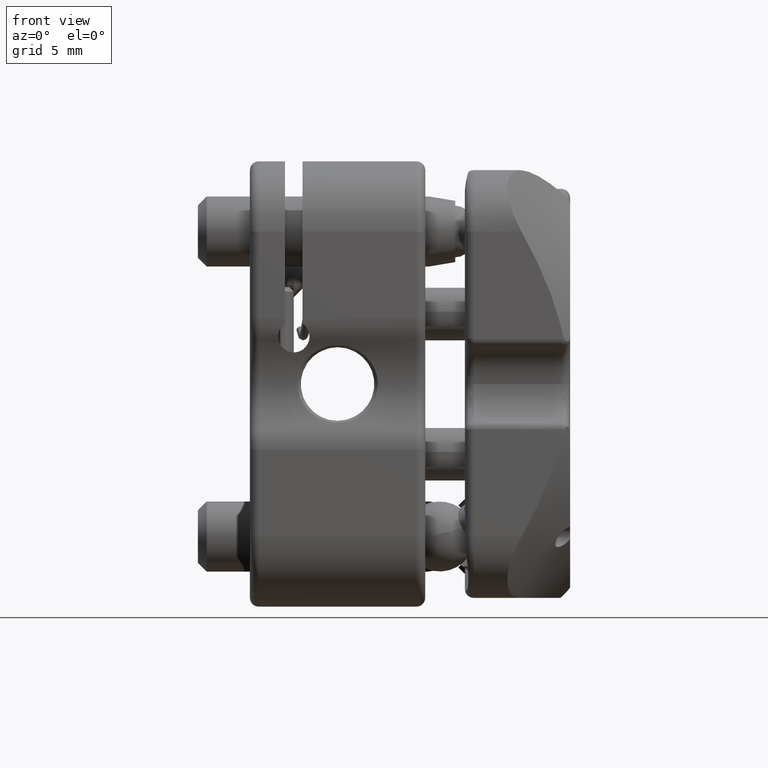
[diagram: clean part render]
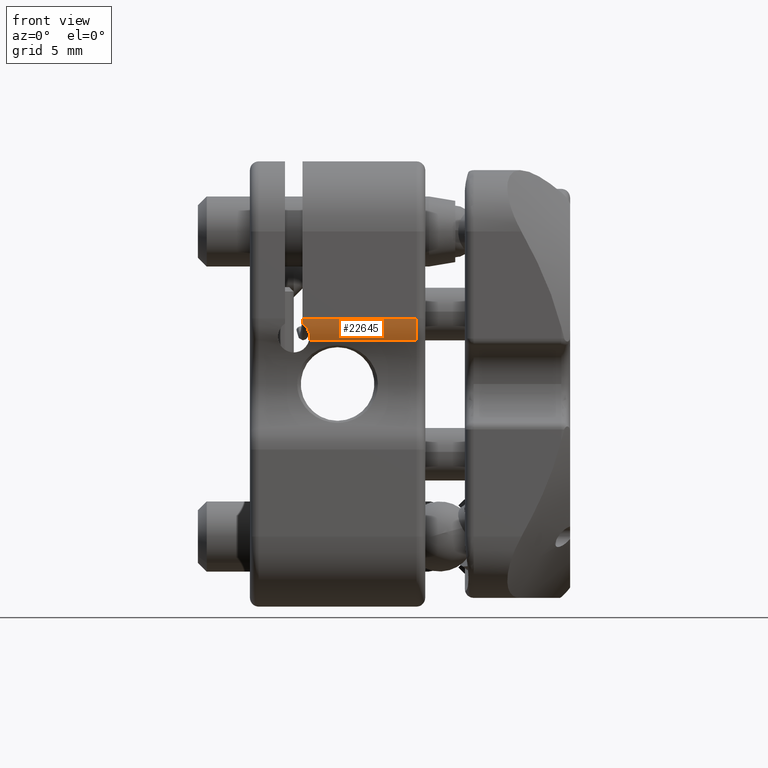
[diagram: same view with one face highlighted and labeled with its STEP entity id]
A machine part, front view. The second image highlights one B-rep face of the part: STEP entity #22645.
In plain terms, the highlighted cylindrical surface (partial cylindrical patch) has radius 2.5 mm, axis along (-1, 0, 0).
Its self-contained STEP definition (entity closure, byte-faithful):
#66 = EDGE_CURVE ( 'NONE', #433, #38697, #7198, .T. ) ;
#433 = VERTEX_POINT ( 'NONE', #35686 ) ;
#711 = CIRCLE ( 'NONE', #13430, 2.500000000000000444 ) ;
#1274 = CARTESIAN_POINT ( 'NONE',  ( -9.000000000000001776, 0.3333333333333278192, 8.099689127586877646 ) ) ;
#2045 = ORIENTED_EDGE ( 'NONE', *, *, #40228, .T. ) ;
#3011 = CARTESIAN_POINT ( 'NONE',  ( -9.000000000000001776, 2.499999999999995115, 9.346908256511522239 ) ) ;
#5234 = ORIENTED_EDGE ( 'NONE', *, *, #39453, .F. ) ;
#7198 = B_SPLINE_CURVE_WITH_KNOTS ( 'NONE', 3,
 ( #40258, #36303, #16751, #20407, #26320, #30244, #36741, #29794 ),
 .UNSPECIFIED., .F., .F.,
 ( 4, 2, 2, 4 ),
 ( 0.0002321896428790677929, 0.0006869918996298951790, 0.0009143930280053078150, 0.001141794156380720451 ),
 .UNSPECIFIED. ) ;
#8136 = VECTOR ( 'NONE', #15782, 1000.000000000000000 ) ;
#10740 = VECTOR ( 'NONE', #20632, 1000.000000000000000 ) ;
#10899 = EDGE_LOOP ( 'NONE', ( #35459, #42578, #2045, #5234, #40456, #27776 ) ) ;
#12628 = FACE_OUTER_BOUND ( 'NONE', #10899, .T. ) ;
#12802 = CARTESIAN_POINT ( 'NONE',  ( -15.09999999999926423, 0.2273473893750234676, 8.305250869737355046 ) ) ;
#12961 = DIRECTION ( 'NONE',  ( -1.000000000000000000, 0.0000000000000000000, 0.0000000000000000000 ) ) ;
#13430 = AXIS2_PLACEMENT_3D ( 'NONE', #26372, #35774, #25938 ) ;
#13519 = AXIS2_PLACEMENT_3D ( 'NONE', #3011, #12961, #36300 ) ;
#15782 = DIRECTION ( 'NONE',  ( 1.000000000000000000, -0.0000000000000000000, -0.0000000000000000000 ) ) ;
#16529 = CARTESIAN_POINT ( 'NONE',  ( -15.50000000000000000, 0.01726765218973587424, 9.053582347092390847 ) ) ;
#16751 = CARTESIAN_POINT ( 'NONE',  ( -15.13239332294805095, 0.1141872216911330867, 8.587489971601621974 ) ) ;
#18057 = LINE ( 'NONE', #30905, #10740 ) ;
#18703 = CARTESIAN_POINT ( 'NONE',  ( -18.50000000000000355, -5.204170427930421283E-15, 9.346908256511522239 ) ) ;
#19357 = CARTESIAN_POINT ( 'NONE',  ( -15.10817031396960175, 0.2950082993259965924, 8.166267302790254590 ) ) ;
#20407 = CARTESIAN_POINT ( 'NONE',  ( -15.23592346189870561, 0.06261118586654371154, 8.786693605786942030 ) ) ;
#20615 = EDGE_CURVE ( 'NONE', #38697, #37553, #711, .T. ) ;
#20632 = DIRECTION ( 'NONE',  ( -1.000000000000000000, 0.0000000000000000000, 0.0000000000000000000 ) ) ;
#21235 = CARTESIAN_POINT ( 'NONE',  ( -15.12378976828391508, 0.3333333333333278192, 8.099689127586875870 ) ) ;
#21543 = CARTESIAN_POINT ( 'NONE',  ( -9.000000000000001776, -5.204170427930421283E-15, 9.346908256511522239 ) ) ;
#21735 = B_SPLINE_CURVE_WITH_KNOTS ( 'NONE', 3,
 ( #32491, #19357, #25467, #12802 ),
 .UNSPECIFIED., .F., .F.,
 ( 4, 4 ),
 ( 0.0000000000000000000, 0.0002321896428790677929 ),
 .UNSPECIFIED. ) ;
#22023 = CYLINDRICAL_SURFACE ( 'NONE', #37906, 2.500000000000000000 ) ;
#22225 = CARTESIAN_POINT ( 'NONE',  ( -8.500000000000000000, 2.499999999999995115, 9.346908256511522239 ) ) ;
#22645 = ADVANCED_FACE ( 'NONE', ( #12628 ), #22023, .T. ) ;
#23061 = DIRECTION ( 'NONE',  ( 0.0000000000000000000, -1.000000000000000000, 0.0000000000000000000 ) ) ;
#25467 = CARTESIAN_POINT ( 'NONE',  ( -15.09999999999996945, 0.2596558558204564160, 8.234761357980444174 ) ) ;
#25938 = DIRECTION ( 'NONE',  ( 0.0000000000000000000, 1.000000000000000000, 0.0000000000000000000 ) ) ;
#26320 = CARTESIAN_POINT ( 'NONE',  ( -15.27827330402256401, 0.04957579004454858163, 8.848214267897025920 ) ) ;
#26372 = CARTESIAN_POINT ( 'NONE',  ( -15.50000000000000000, 2.499999999999995115, 9.346908256511522239 ) ) ;
#27776 = ORIENTED_EDGE ( 'NONE', *, *, #66, .F. ) ;
#27930 = LINE ( 'NONE', #18703, #8136 ) ;
#29794 = CARTESIAN_POINT ( 'NONE',  ( -15.50000000000000000, 0.01726765218973587424, 9.053582347092390847 ) ) ;
#29895 = DIRECTION ( 'NONE',  ( -1.000000000000000000, 0.0000000000000000000, 0.0000000000000000000 ) ) ;
#30244 = CARTESIAN_POINT ( 'NONE',  ( -15.37880590100916223, 0.02932453300836228294, 8.960854840749293615 ) ) ;
#30905 = CARTESIAN_POINT ( 'NONE',  ( -8.500000000000000000, 0.3333333333333278192, 8.099689127586877646 ) ) ;
#32491 = CARTESIAN_POINT ( 'NONE',  ( -15.12378976828391508, 0.3333333333333278192, 8.099689127586875870 ) ) ;
#32523 = EDGE_CURVE ( 'NONE', #42876, #433, #21735, .T. ) ;
#33981 = VERTEX_POINT ( 'NONE', #21543 ) ;
#34079 = CIRCLE ( 'NONE', #13519, 2.500000000000000000 ) ;
#35459 = ORIENTED_EDGE ( 'NONE', *, *, #32523, .F. ) ;
#35686 = CARTESIAN_POINT ( 'NONE',  ( -15.09999999999926423, 0.2273473893750234676, 8.305250869737355046 ) ) ;
#35774 = DIRECTION ( 'NONE',  ( -1.000000000000000000, 0.0000000000000000000, -0.0000000000000000000 ) ) ;
#36171 = CARTESIAN_POINT ( 'NONE',  ( -15.50000000000000000, -6.938893903907228378E-15, 9.346908256511522239 ) ) ;
#36300 = DIRECTION ( 'NONE',  ( 0.0000000000000000000, -1.000000000000000000, 0.0000000000000000000 ) ) ;
#36303 = CARTESIAN_POINT ( 'NONE',  ( -15.09999999999995524, 0.1640630702764143134, 8.443322441866554229 ) ) ;
#36741 = CARTESIAN_POINT ( 'NONE',  ( -15.43701586890224320, 0.02223961253623157192, 9.011499304347488248 ) ) ;
#37553 = VERTEX_POINT ( 'NONE', #36171 ) ;
#37906 = AXIS2_PLACEMENT_3D ( 'NONE', #22225, #29895, #23061 ) ;
#38697 = VERTEX_POINT ( 'NONE', #16529 ) ;
#38920 = EDGE_CURVE ( 'NONE', #42881, #42876, #18057, .T. ) ;
#39453 = EDGE_CURVE ( 'NONE', #37553, #33981, #27930, .T. ) ;
#40228 = EDGE_CURVE ( 'NONE', #42881, #33981, #34079, .T. ) ;
#40258 = CARTESIAN_POINT ( 'NONE',  ( -15.09999999999926423, 0.2273473893750234676, 8.305250869737355046 ) ) ;
#40456 = ORIENTED_EDGE ( 'NONE', *, *, #20615, .F. ) ;
#42578 = ORIENTED_EDGE ( 'NONE', *, *, #38920, .F. ) ;
#42876 = VERTEX_POINT ( 'NONE', #21235 ) ;
#42881 = VERTEX_POINT ( 'NONE', #1274 ) ;